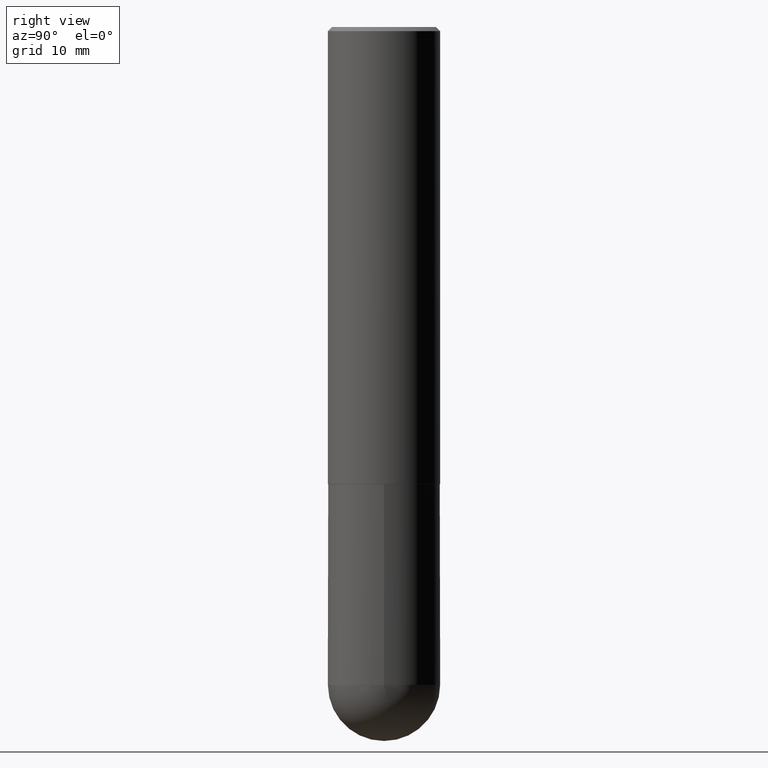
[diagram: clean part render]
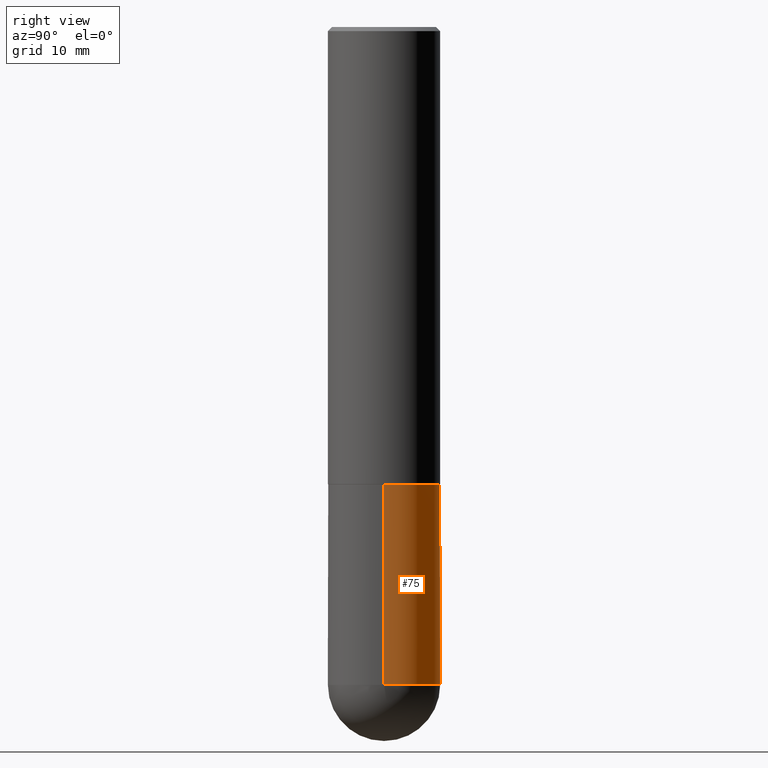
[diagram: same view with one face highlighted and labeled with its STEP entity id]
A machine part, right view. The second image highlights one B-rep face of the part: STEP entity #75.
In plain terms, the highlighted cylindrical surface (partial cylindrical patch) has radius 7.0002 mm, axis along (-0, 0, 1).
Its self-contained STEP definition (entity closure, byte-faithful):
#2 = ORIENTED_EDGE ( 'NONE', *, *, #368, .T. ) ;
#5 = CIRCLE ( 'NONE', #226, 0.2756000000000000671 ) ;
#22 = CARTESIAN_POINT ( 'NONE',  ( 0.000000000000000000, 0.000000000000000000, 0.000000000000000000 ) ) ;
#28 = DIRECTION ( 'NONE',  ( -2.445468806185136597E-29, 3.491481338843145583E-15, 1.000000000000000000 ) ) ;
#63 = DIRECTION ( 'NONE',  ( -2.445468806185136597E-29, 3.491481338843145583E-15, 1.000000000000000000 ) ) ;
#75 = ADVANCED_FACE ( 'NONE', ( #269 ), #181, .T. ) ;
#86 = EDGE_LOOP ( 'NONE', ( #2, #156, #292, #202, #266 ) ) ;
#87 = EDGE_CURVE ( 'NONE', #231, #372, #376, .T. ) ;
#91 = AXIS2_PLACEMENT_3D ( 'NONE', #306, #28, #364 ) ;
#98 = DIRECTION ( 'NONE',  ( -2.445468806185136877E-29, 3.491481338843145188E-15, 1.000000000000000000 ) ) ;
#101 = CARTESIAN_POINT ( 'NONE',  ( -0.2756000000000000116, -7.595135459587776616E-15, -2.244099999999999540 ) ) ;
#107 = CARTESIAN_POINT ( 'NONE',  ( -0.2756000000000000671, 1.958255779754836589E-15, -1.355658510874252287E-29 ) ) ;
#112 = CIRCLE ( 'NONE', #161, 0.2756000000000000116 ) ;
#117 = CARTESIAN_POINT ( 'NONE',  ( 0.2756000000000000116, -9.759737786468235716E-15, -2.244099999999999540 ) ) ;
#126 = DIRECTION ( 'NONE',  ( -2.445468806185136597E-29, 3.491481338843145583E-15, 1.000000000000000000 ) ) ;
#138 = EDGE_CURVE ( 'NONE', #172, #154, #230, .T. ) ;
#143 = AXIS2_PLACEMENT_3D ( 'NONE', #22, #126, #251 ) ;
#154 = VERTEX_POINT ( 'NONE', #101 ) ;
#156 = ORIENTED_EDGE ( 'NONE', *, *, #138, .T. ) ;
#161 = AXIS2_PLACEMENT_3D ( 'NONE', #330, #185, #336 ) ;
#166 = CARTESIAN_POINT ( 'NONE',  ( -0.2756000000000000671, -7.595135459587778194E-15, -3.228299999999999503 ) ) ;
#172 = VERTEX_POINT ( 'NONE', #166 ) ;
#175 = VECTOR ( 'NONE', #201, 39.37007874015748143 ) ;
#180 = CARTESIAN_POINT ( 'NONE',  ( 1.924504513970413840E-15, 0.2755999999999887429, -3.228300000000000836 ) ) ;
#181 = CYLINDRICAL_SURFACE ( 'NONE', #143, 0.2756000000000000671 ) ;
#185 = DIRECTION ( 'NONE',  ( -2.445468806185136597E-29, 3.491481338843145583E-15, 1.000000000000000000 ) ) ;
#201 = DIRECTION ( 'NONE',  ( -2.445468806185136877E-29, 3.491481338843145188E-15, 1.000000000000000000 ) ) ;
#202 = ORIENTED_EDGE ( 'NONE', *, *, #87, .F. ) ;
#226 = AXIS2_PLACEMENT_3D ( 'NONE', #409, #63, #370 ) ;
#230 = LINE ( 'NONE', #107, #175 ) ;
#231 = VERTEX_POINT ( 'NONE', #359 ) ;
#251 = DIRECTION ( 'NONE',  ( 1.000000000000000000, -6.982962677686267499E-15, 4.876176775795935793E-29 ) ) ;
#266 = ORIENTED_EDGE ( 'NONE', *, *, #382, .T. ) ;
#269 = FACE_OUTER_BOUND ( 'NONE', #86, .T. ) ;
#292 = ORIENTED_EDGE ( 'NONE', *, *, #304, .F. ) ;
#299 = VECTOR ( 'NONE', #98, 39.37007874015748143 ) ;
#304 = EDGE_CURVE ( 'NONE', #372, #154, #112, .T. ) ;
#306 = CARTESIAN_POINT ( 'NONE',  ( 7.894706947007475996E-29, -1.127154920618732565E-14, -3.228299999999999503 ) ) ;
#320 = CARTESIAN_POINT ( 'NONE',  ( 0.2756000000000000671, -1.924504513970335743E-15, 1.343874319409360268E-29 ) ) ;
#330 = CARTESIAN_POINT ( 'NONE',  ( 5.487876547960063631E-29, -7.835233272497900762E-15, -2.244099999999999540 ) ) ;
#336 = DIRECTION ( 'NONE',  ( 1.000000000000000000, -6.982962677686265922E-15, 0.000000000000000000 ) ) ;
#359 = CARTESIAN_POINT ( 'NONE',  ( 0.2756000000000000671, -1.147789575331294974E-14, -3.228299999999999503 ) ) ;
#364 = DIRECTION ( 'NONE',  ( 1.000000000000000000, -6.982962677686264344E-15, 0.000000000000000000 ) ) ;
#368 = EDGE_CURVE ( 'NONE', #411, #172, #5, .T. ) ;
#370 = DIRECTION ( 'NONE',  ( 1.000000000000000000, -6.982962677686264344E-15, 0.000000000000000000 ) ) ;
#372 = VERTEX_POINT ( 'NONE', #117 ) ;
#374 = CIRCLE ( 'NONE', #91, 0.2756000000000000671 ) ;
#376 = LINE ( 'NONE', #320, #299 ) ;
#382 = EDGE_CURVE ( 'NONE', #231, #411, #374, .T. ) ;
#409 = CARTESIAN_POINT ( 'NONE',  ( 7.894706947007475996E-29, -1.127154920618732565E-14, -3.228299999999999503 ) ) ;
#411 = VERTEX_POINT ( 'NONE', #180 ) ;